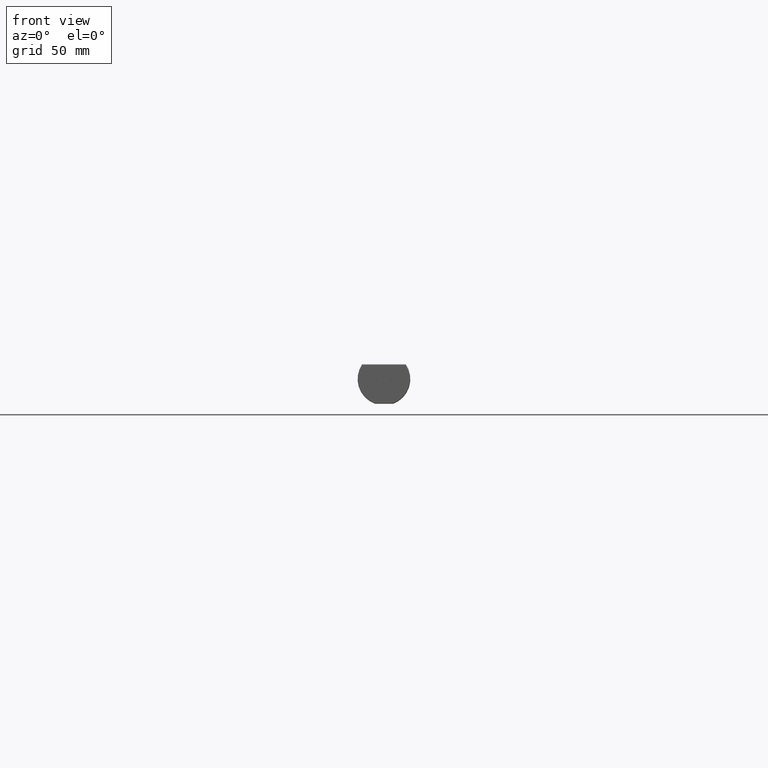
[diagram: clean part render]
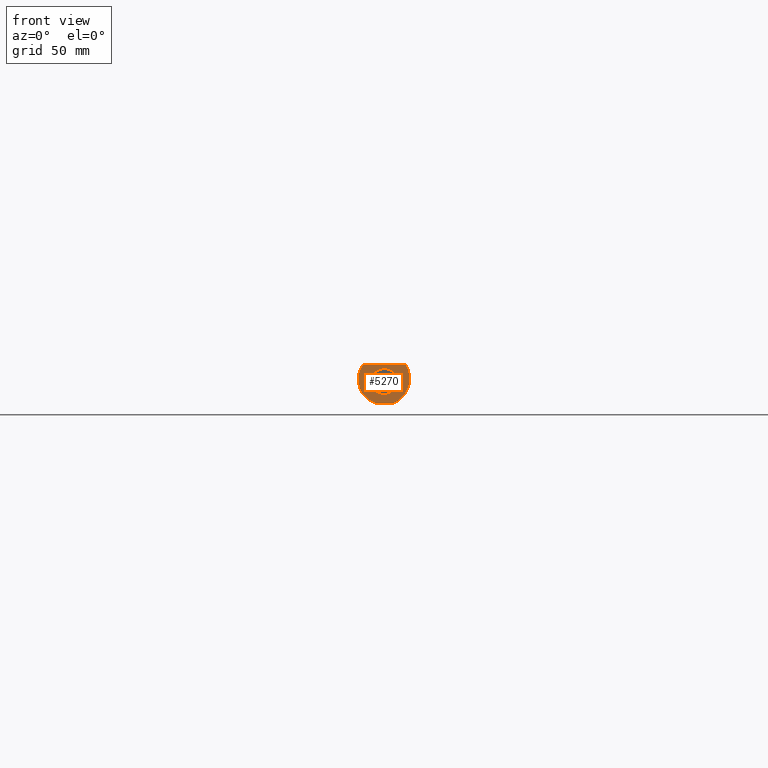
[diagram: same view with one face highlighted and labeled with its STEP entity id]
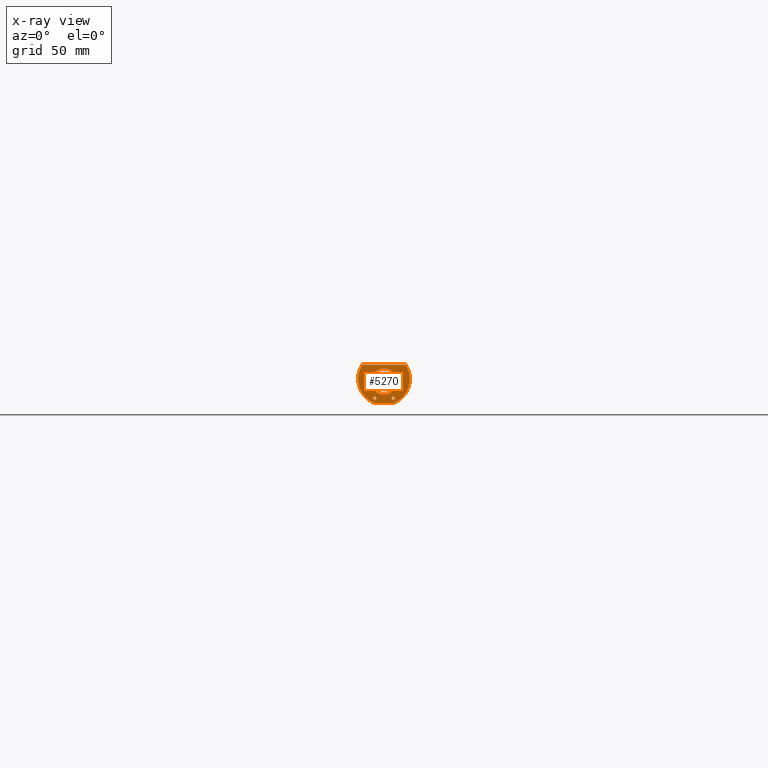
[diagram: x-ray of the same camera — body ghosted, the highlighted face saturated]
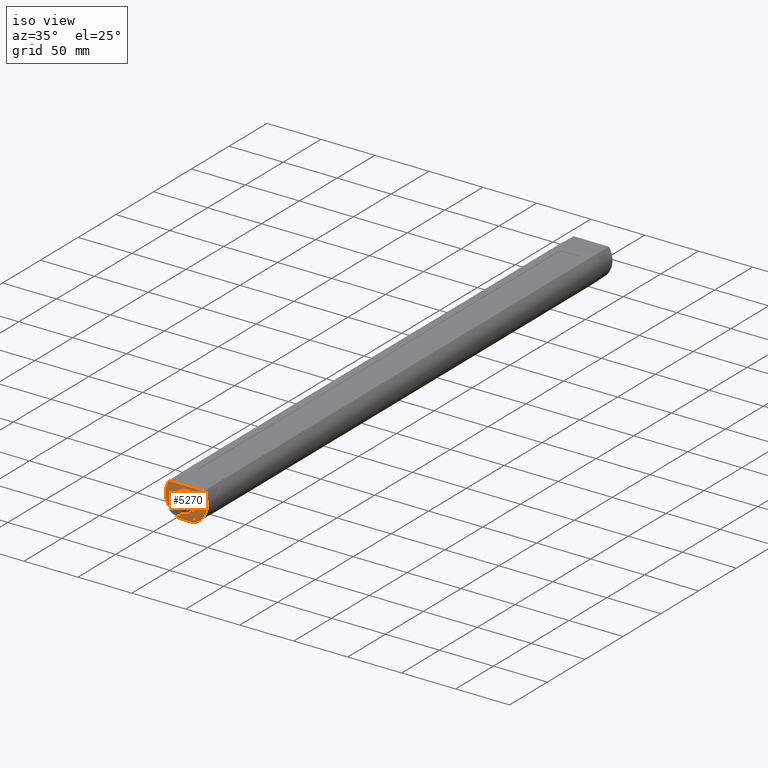
[diagram: same view with one face highlighted and labeled with its STEP entity id]
A machine part, front view. The second image highlights one B-rep face of the part: STEP entity #5270.
The next image is the same camera in x-ray: the body ghosted, the highlighted face saturated — about 0% of this face is hidden behind the body in this view.
A second angle (iso view) of the same face is appended — the face is thin or edge-on in the first view.
In plain terms, the highlighted planar face has unit normal (0, 1, 0).
Its self-contained STEP definition (entity closure, byte-faithful):
#4210=CARTESIAN_POINT('',(-9.875,-1.90000000000001,-268.));
#4220=VERTEX_POINT('',#4210);
#4250=CARTESIAN_POINT('',(0.,-1.90000000000001,-268.));
#4260=DIRECTION('',(0.,0.,1.));
#4270=DIRECTION('',(-1.,-1.12427648063307E-16,0.));
#4280=AXIS2_PLACEMENT_3D('',#4250,#4260,#4270);
#4290=CIRCLE('',#4280,9.875);
#4300=CARTESIAN_POINT('',(9.875,-1.90000000000001,-268.));
#4310=VERTEX_POINT('',#4300);
#4320=EDGE_CURVE('',#4220,#4310,#4290,.T.);
#4510=CARTESIAN_POINT('',(0.,-1.06581410364015E-14,-268.));
#4520=DIRECTION('',(0.,0.,1.));
#4530=DIRECTION('',(1.,0.,0.));
#4540=AXIS2_PLACEMENT_3D('',#4510,#4520,#4530);
#4550=PLANE('',#4540);
#4560=ORIENTED_EDGE('',*,*,#4320,.T.);
#4570=EDGE_CURVE('',#4310,#4220,#4290,.T.);
#4580=ORIENTED_EDGE('',*,*,#4570,.T.);
#4590=EDGE_LOOP('',(#4580,#4560));
#4600=FACE_BOUND('',#4590,.T.);
#4610=CARTESIAN_POINT('',(0.,-1.06581410364015E-14,-268.));
#4620=DIRECTION('',(0.,0.,-1.));
#4630=DIRECTION('',(0.835095953094065,0.550104307496238,0.));
#4640=AXIS2_PLACEMENT_3D('',#4610,#4620,#4630);
#4650=CIRCLE('',#4640,19.5600894754653);
#4660=CARTESIAN_POINT('',(16.3345515631189,10.7600894754653,-268.));
#4670=VERTEX_POINT('',#4660);
#4680=CARTESIAN_POINT('',(6.88024154290117,-18.3100894754653,-268.));
#4690=VERTEX_POINT('',#4680);
#4700=EDGE_CURVE('',#4670,#4690,#4650,.T.);
#4710=ORIENTED_EDGE('',*,*,#4700,.T.);
#4720=CARTESIAN_POINT('',(16.3345515631189,10.7600894754653,-268.));
#4730=DIRECTION('',(-1.,0.,0.));
#4740=VECTOR('',#4730,1.);
#4750=LINE('',#4720,#4740);
#4760=CARTESIAN_POINT('',(-16.3345515631189,10.7600894754653,-268.));
#4770=VERTEX_POINT('',#4760);
#4780=EDGE_CURVE('',#4670,#4770,#4750,.T.);
#4790=ORIENTED_EDGE('',*,*,#4780,.F.);
#4800=CARTESIAN_POINT('',(0.,-1.06581410364015E-14,-268.));
#4810=DIRECTION('',(0.,0.,-1.));
#4820=DIRECTION('',(-1.,-1.09502560943461E-15,0.));
#4830=AXIS2_PLACEMENT_3D('',#4800,#4810,#4820);
#4840=CIRCLE('',#4830,19.5600894754653);
#4850=CARTESIAN_POINT('',(-6.88024154290119,-18.3100894754653,-268.));
#4860=VERTEX_POINT('',#4850);
#4870=EDGE_CURVE('',#4860,#4770,#4840,.T.);
#4880=ORIENTED_EDGE('',*,*,#4870,.T.);
#4890=CARTESIAN_POINT('',(-6.88024154290119,-18.3100894754653,-268.));
#4900=DIRECTION('',(1.,0.,0.));
#4910=VECTOR('',#4900,1.);
#4920=LINE('',#4890,#4910);
#4930=EDGE_CURVE('',#4860,#4690,#4920,.T.);
#4940=ORIENTED_EDGE('',*,*,#4930,.F.);
#4950=EDGE_LOOP('',(#4940,#4880,#4790,#4710));
#4960=FACE_OUTER_BOUND('',#4950,.T.);
#4970=CARTESIAN_POINT('',(7.,-14.6000894754653,-268.));
#4980=DIRECTION('',(0.,0.,-1.));
#4990=DIRECTION('',(-1.,0.,0.));
#5000=AXIS2_PLACEMENT_3D('',#4970,#4980,#4990);
#5010=CIRCLE('',#5000,1.4);
#5020=CARTESIAN_POINT('',(5.6,-14.6000894754653,-268.));
#5030=VERTEX_POINT('',#5020);
#5040=CARTESIAN_POINT('',(8.4,-14.6000894754653,-268.));
#5050=VERTEX_POINT('',#5040);
#5060=EDGE_CURVE('',#5030,#5050,#5010,.T.);
#5070=ORIENTED_EDGE('',*,*,#5060,.F.);
#5080=EDGE_CURVE('',#5050,#5030,#5010,.T.);
#5090=ORIENTED_EDGE('',*,*,#5080,.F.);
#5100=EDGE_LOOP('',(#5090,#5070));
#5110=FACE_BOUND('',#5100,.T.);
#5120=CARTESIAN_POINT('',(-7.,-14.6000894754653,-268.));
#5130=DIRECTION('',(0.,0.,-1.));
#5140=DIRECTION('',(-1.,0.,0.));
#5150=AXIS2_PLACEMENT_3D('',#5120,#5130,#5140);
#5160=CIRCLE('',#5150,1.4);
#5170=CARTESIAN_POINT('',(-8.4,-14.6000894754653,-268.));
#5180=VERTEX_POINT('',#5170);
#5190=CARTESIAN_POINT('',(-5.6,-14.6000894754653,-268.));
#5200=VERTEX_POINT('',#5190);
#5210=EDGE_CURVE('',#5180,#5200,#5160,.T.);
#5220=ORIENTED_EDGE('',*,*,#5210,.F.);
#5230=EDGE_CURVE('',#5200,#5180,#5160,.T.);
#5240=ORIENTED_EDGE('',*,*,#5230,.F.);
#5250=EDGE_LOOP('',(#5240,#5220));
#5260=FACE_BOUND('',#5250,.T.);
#5270=ADVANCED_FACE('',(#4600,#4960,#5110,#5260),#4550,.F.);